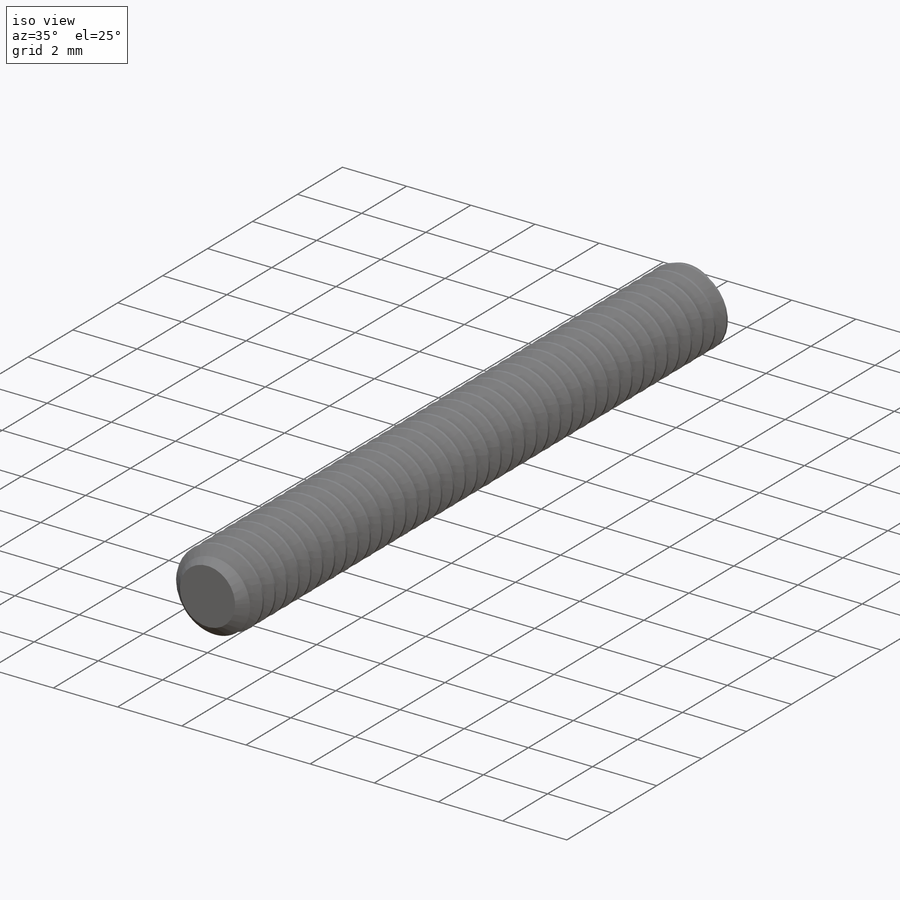
[diagram: iso view]
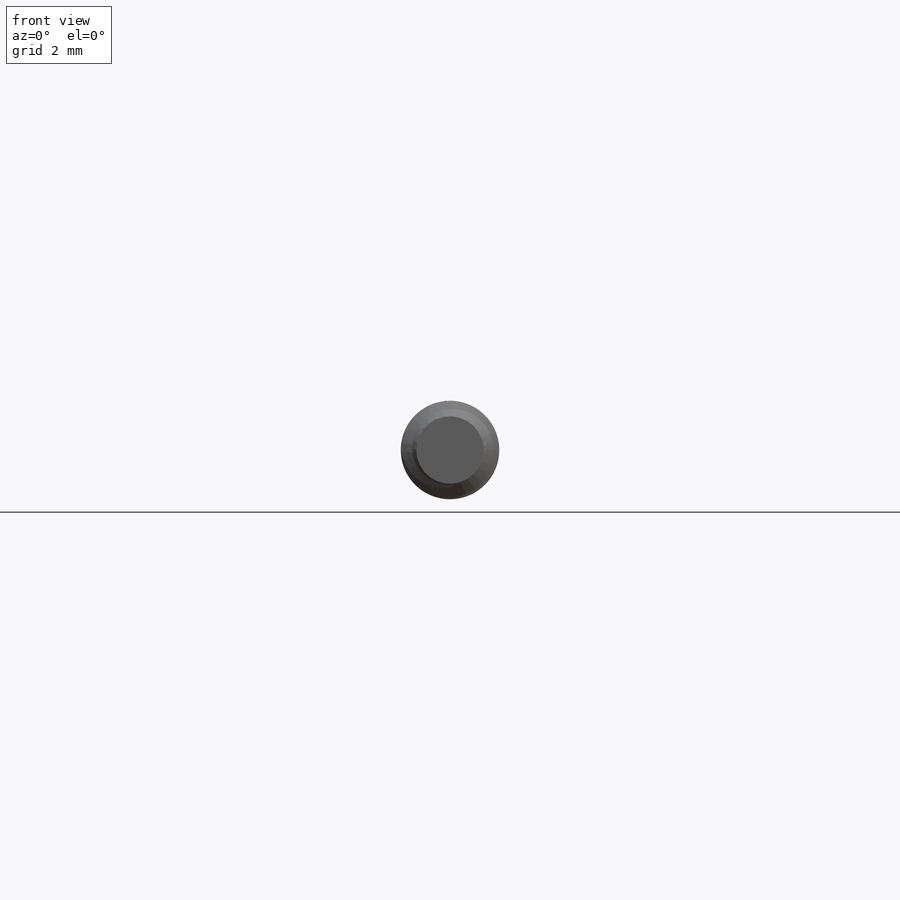
[diagram: front view]
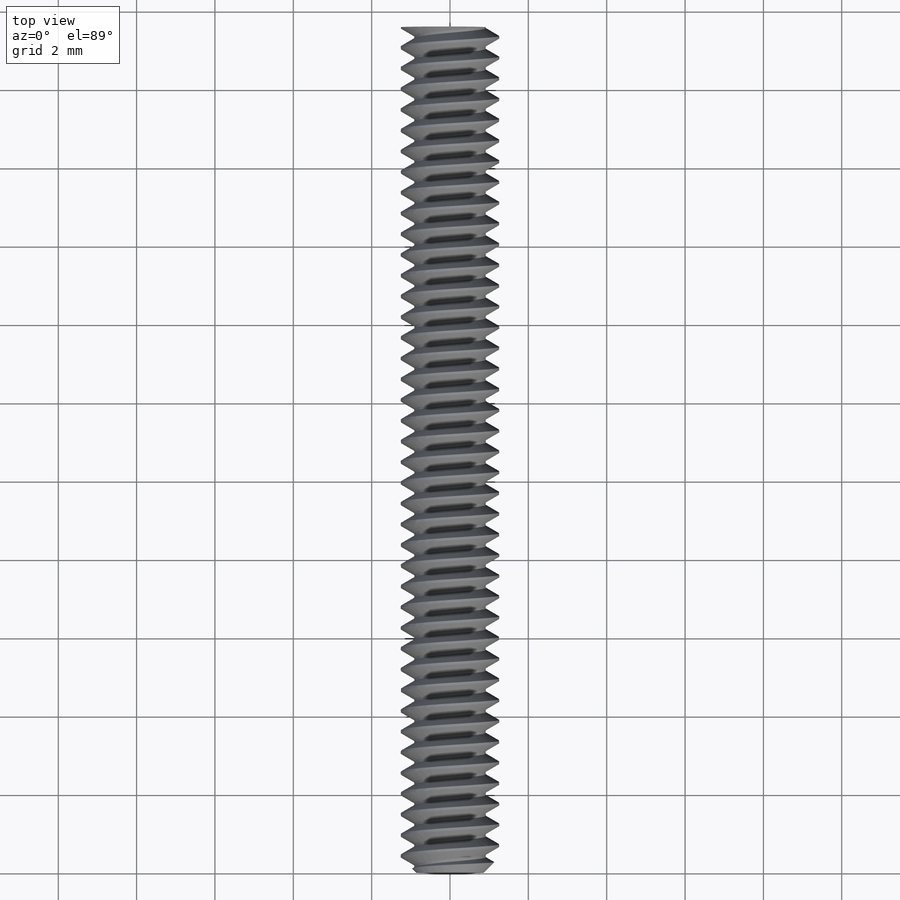
[diagram: top view]
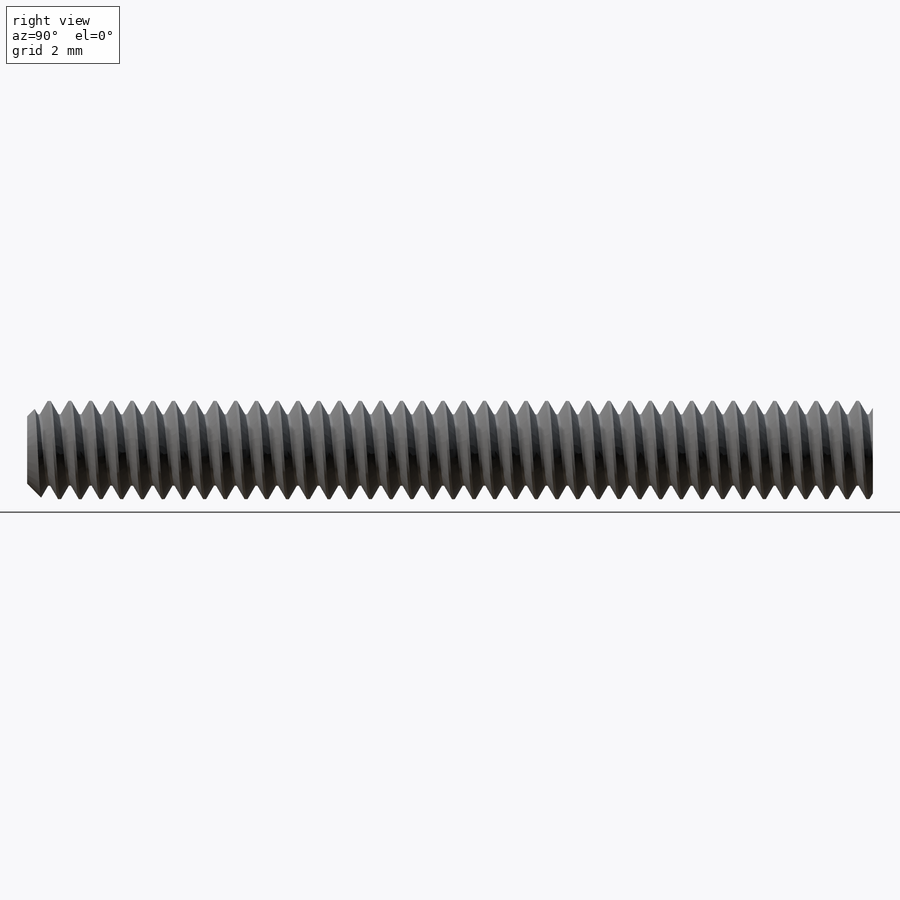
[diagram: right view]
SOLIDWORKS PART (.sldprt)
format: sldprt  version: not decoded by parser v0  size: 1,441,792 bytes
history: native  units: mm
features: sketch x7, chamfer x3, extrude x2, cut_extrude x2, material x1, helix x1, sweep x1 (+14 scaffold rows collapsed)
feature tree (31):
  scaffold x14  (default folders/planes/origin — collapsed)
  material  "Material <not specified>"
  sketch  "Sketch1"  dims[OD=2.5146mm]
  extrude  "Extrude1"  Depth=21.59mm screw length=21.59mm
  sketch  "Sketch2"
  helix  "Helix/Spiral1"  Pitch=22.119167mm pitch=0.529167mm
  chamfer  "Chamfer3"  Distance=0.396875mm Angle=45deg
  sketch  "Sketch3"  dims[c1.D1=~0.066146mm c1.D2=~0.264583mm c1.D3=~1.069256mm c2.D3=60.0deg]
  sweep  "Cut-Sweep1"
  sketch  "Sketch6"  dims[head dia=4.0894mm]
  extrude  "Extrude2"  Depth=2.5146mm head depth=2.5146mm
  sketch  "Sketch7"  dims[hex dia=~1.984375mm]
  cut_extrude  "Cut-Extrude1"  Depth=1.488281mm
  sketch  "Sketch8"
  cut_extrude  "Cut-Extrude2"  Depth=0.25146mm
  chamfer  "Chamfer1"  Distance=0.25146mm Angle=45deg
  chamfer  "Chamfer2"  Distance=0.12573mm Angle=45deg
  sketch  "Sketch9"  dims[D1=~2.910417mm D2=2.5146mm D3=4.0894mm D4=21.59mm]
decode coverage: 13 of 16 modeling features carry decoded parameters
note: ~ marks probable driven/reference dimensions
note: suppression state not decoded; provenance and decode notes live in map.json
